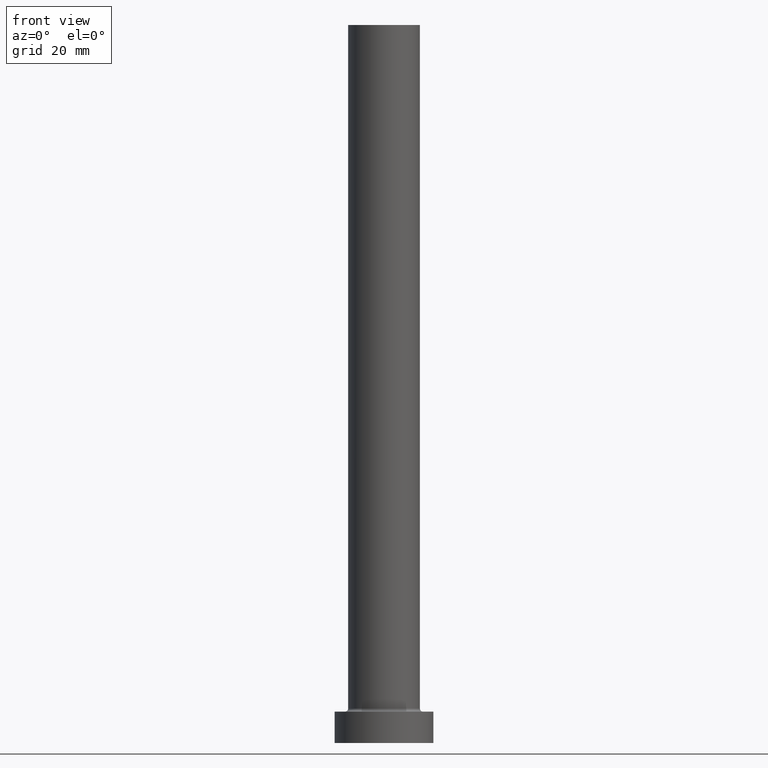
[diagram: clean part render]
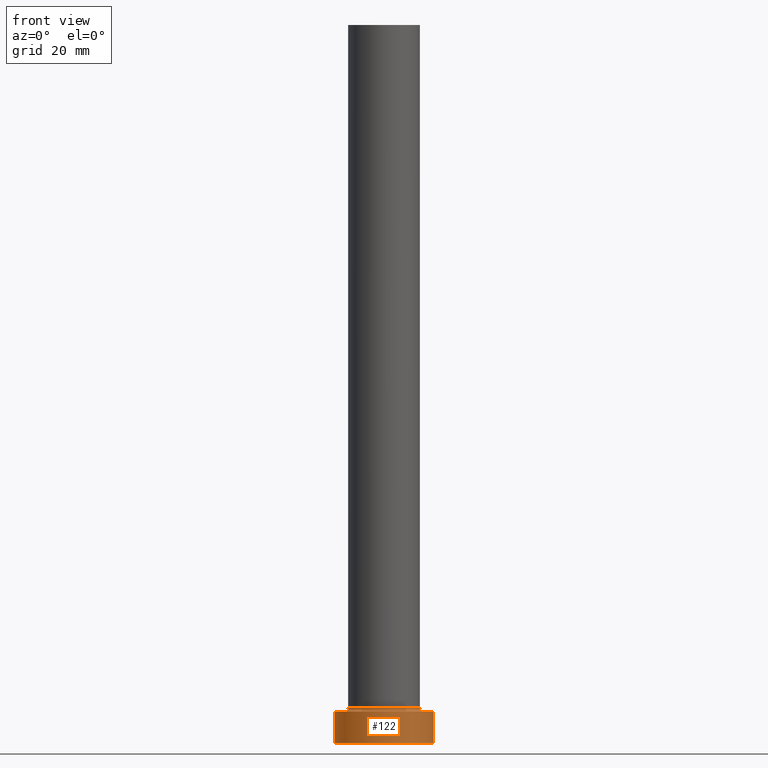
[diagram: same view with one face highlighted and labeled with its STEP entity id]
A machine part, front view. The second image highlights one B-rep face of the part: STEP entity #122.
In plain terms, the highlighted cylindrical surface (partial cylindrical patch) has radius 11 mm, axis along (-0, -0, -1).
Its self-contained STEP definition (entity closure, byte-faithful):
#11 = CARTESIAN_POINT ( 'NONE',  ( 0.000000000000000000, 0.000000000000000000, 7.000000000000000000 ) ) ;
#13 = CARTESIAN_POINT ( 'NONE',  ( 11.00000000000000000, 1.347111479062088405E-15, 0.000000000000000000 ) ) ;
#21 = AXIS2_PLACEMENT_3D ( 'NONE', #367, #47, #365 ) ;
#29 = VERTEX_POINT ( 'NONE', #331 ) ;
#39 = VERTEX_POINT ( 'NONE', #222 ) ;
#47 = DIRECTION ( 'NONE',  ( 0.000000000000000000, 0.000000000000000000, 1.000000000000000000 ) ) ;
#48 = DIRECTION ( 'NONE',  ( 1.000000000000000000, 0.000000000000000000, 0.000000000000000000 ) ) ;
#50 = EDGE_CURVE ( 'NONE', #39, #177, #172, .T. ) ;
#68 = ORIENTED_EDGE ( 'NONE', *, *, #277, .F. ) ;
#100 = CARTESIAN_POINT ( 'NONE',  ( 11.00000000000000000, 1.347111479062088405E-15, 7.000000000000000000 ) ) ;
#121 = CARTESIAN_POINT ( 'NONE',  ( -11.00000000000000000, 0.000000000000000000, 7.000000000000000000 ) ) ;
#122 = ADVANCED_FACE ( 'NONE', ( #305 ), #266, .T. ) ;
#141 = DIRECTION ( 'NONE',  ( -0.000000000000000000, -0.000000000000000000, -1.000000000000000000 ) ) ;
#154 = DIRECTION ( 'NONE',  ( 0.000000000000000000, 0.000000000000000000, 1.000000000000000000 ) ) ;
#172 = CIRCLE ( 'NONE', #343, 11.00000000000000000 ) ;
#177 = VERTEX_POINT ( 'NONE', #203 ) ;
#203 = CARTESIAN_POINT ( 'NONE',  ( 11.00000000000000000, 1.347111479062088405E-15, 7.000000000000000000 ) ) ;
#215 = EDGE_CURVE ( 'NONE', #39, #29, #341, .T. ) ;
#217 = VECTOR ( 'NONE', #378, 1000.000000000000000 ) ;
#219 = ORIENTED_EDGE ( 'NONE', *, *, #442, .T. ) ;
#222 = CARTESIAN_POINT ( 'NONE',  ( -11.00000000000000000, 0.000000000000000000, 7.000000000000000000 ) ) ;
#266 = CYLINDRICAL_SURFACE ( 'NONE', #438, 11.00000000000000000 ) ;
#277 = EDGE_CURVE ( 'NONE', #177, #392, #359, .T. ) ;
#280 = ORIENTED_EDGE ( 'NONE', *, *, #215, .T. ) ;
#305 = FACE_OUTER_BOUND ( 'NONE', #398, .T. ) ;
#306 = VECTOR ( 'NONE', #141, 1000.000000000000000 ) ;
#331 = CARTESIAN_POINT ( 'NONE',  ( -11.00000000000000000, 0.000000000000000000, 0.000000000000000000 ) ) ;
#341 = LINE ( 'NONE', #121, #217 ) ;
#343 = AXIS2_PLACEMENT_3D ( 'NONE', #11, #154, #48 ) ;
#359 = LINE ( 'NONE', #100, #306 ) ;
#365 = DIRECTION ( 'NONE',  ( 1.000000000000000000, 0.000000000000000000, 0.000000000000000000 ) ) ;
#367 = CARTESIAN_POINT ( 'NONE',  ( 0.000000000000000000, 0.000000000000000000, 0.000000000000000000 ) ) ;
#373 = DIRECTION ( 'NONE',  ( -0.000000000000000000, -0.000000000000000000, -1.000000000000000000 ) ) ;
#378 = DIRECTION ( 'NONE',  ( -0.000000000000000000, -0.000000000000000000, -1.000000000000000000 ) ) ;
#383 = ORIENTED_EDGE ( 'NONE', *, *, #50, .F. ) ;
#392 = VERTEX_POINT ( 'NONE', #13 ) ;
#398 = EDGE_LOOP ( 'NONE', ( #68, #383, #280, #219 ) ) ;
#418 = CIRCLE ( 'NONE', #21, 11.00000000000000000 ) ;
#438 = AXIS2_PLACEMENT_3D ( 'NONE', #443, #373, #451 ) ;
#442 = EDGE_CURVE ( 'NONE', #29, #392, #418, .T. ) ;
#443 = CARTESIAN_POINT ( 'NONE',  ( 0.000000000000000000, 0.000000000000000000, 7.000000000000000000 ) ) ;
#451 = DIRECTION ( 'NONE',  ( -1.000000000000000000, 0.000000000000000000, 0.000000000000000000 ) ) ;